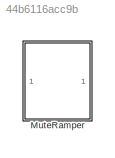
MODEL slx_44b6116acc9b
KIND library
CONFIG AbsTol = auto
CONFIG EnableMultiTasking = off
CONFIG FixedStep = auto
CONFIG MaxStep = auto
CONFIG MinStep = auto
CONFIG RelTol = 1e-3
CONFIG SampleTimeConstraint = Unconstrained
CONFIG SolverName = VariableStepAuto
CONFIG StartTime = 0.0
CONFIG StopTime = 10.0
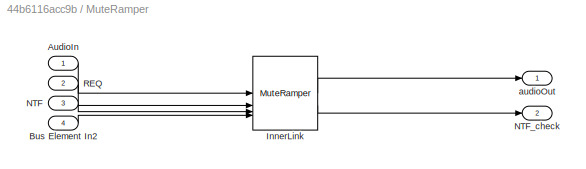
BLOCK [SubSystem] MuteRamper
BLOCK [Inport] MuteRamper/AudioIn
BLOCK [Inport] MuteRamper/Bus Element In2
  Port = 4
BLOCK [Reference] MuteRamper/InnerLink  REF=MuteRamperBtc/MuteRamper
  SourceBlock = MuteRamperBtc/MuteRamper
  SourceProductName = Bose Blocklib
  SourceType = Blocklib MuteRamper
BLOCK [Inport] MuteRamper/NTF
  Port = 3
BLOCK [Outport] MuteRamper/NTF_check
  Port = 2
BLOCK [Inport] MuteRamper/REQ
  Port = 2
BLOCK [Outport] MuteRamper/audioOut
LINE MuteRamper/AudioIn:1 -> MuteRamper/InnerLink:1
LINE MuteRamper/Bus Element In2:1 -> MuteRamper/InnerLink:4
LINE MuteRamper/InnerLink:1 -> MuteRamper/audioOut:1
LINE MuteRamper/InnerLink:2 -> MuteRamper/NTF_check:1
LINE MuteRamper/NTF:1 -> MuteRamper/InnerLink:3
LINE MuteRamper/REQ:1 -> MuteRamper/InnerLink:2
